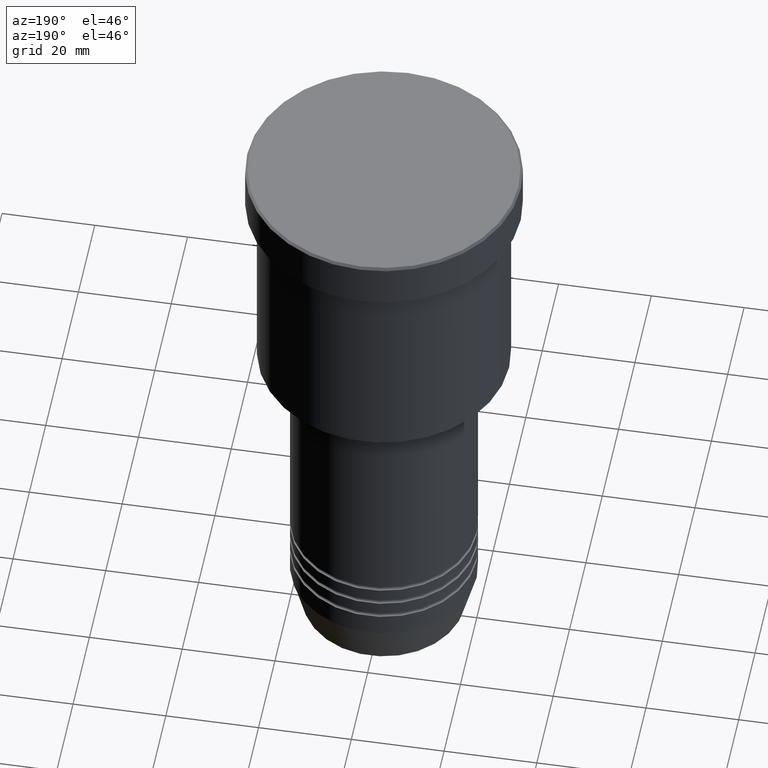
[diagram: clean part render]
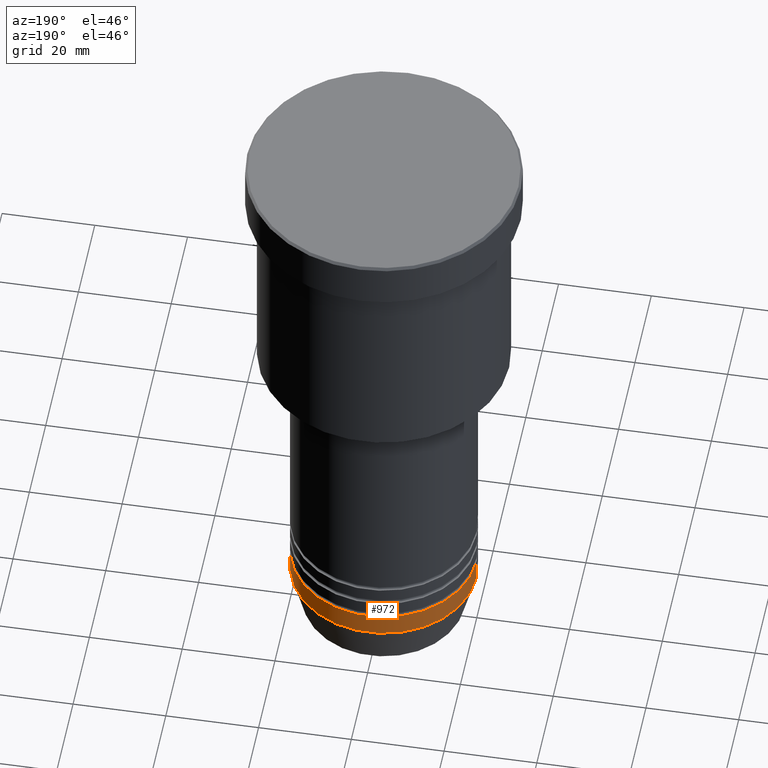
[diagram: same view with one face highlighted and labeled with its STEP entity id]
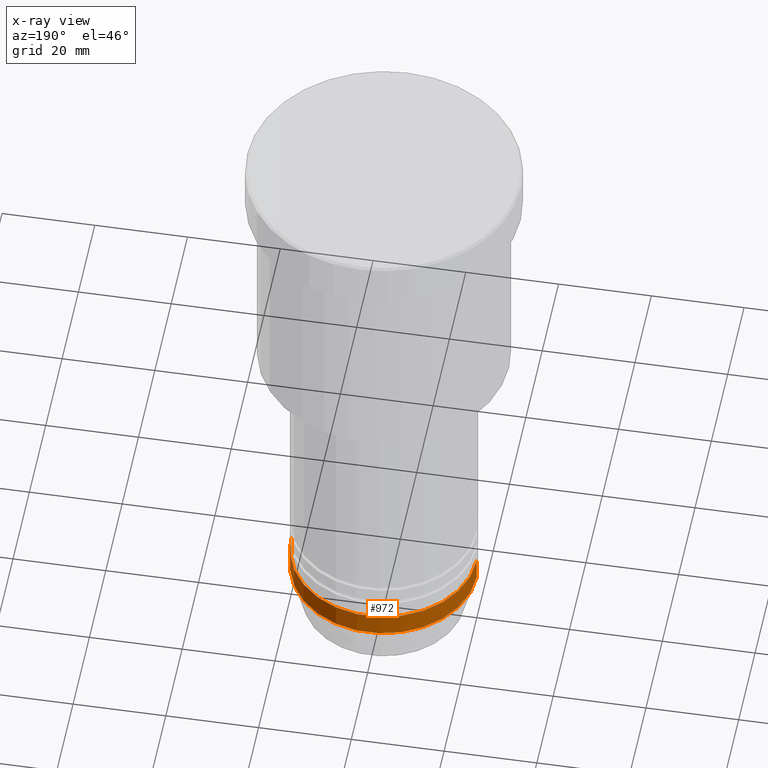
[diagram: x-ray of the same camera — body ghosted, the highlighted face saturated]
A machine part, auxiliary view. The second image highlights one B-rep face of the part: STEP entity #972.
The next image is the same camera in x-ray: the body ghosted, the highlighted face saturated — about 0% of this face is hidden behind the body in this view.
In plain terms, the highlighted cylindrical surface (partial cylindrical patch) has radius 20 mm, axis along (-0, -0, 1).
Its self-contained STEP definition (entity closure, byte-faithful):
#15 = AXIS2_PLACEMENT_3D ( 'NONE', #967, #53, #1114 ) ;
#43 = CARTESIAN_POINT ( 'NONE',  ( 0.000000000000000000, 0.000000000000000000, -121.0000000000000000 ) ) ;
#53 = DIRECTION ( 'NONE',  ( -0.000000000000000000, -0.000000000000000000, 1.000000000000000000 ) ) ;
#105 = FACE_OUTER_BOUND ( 'NONE', #272, .T. ) ;
#106 = CARTESIAN_POINT ( 'NONE',  ( 20.00000000000000000, 0.000000000000000000, 0.000000000000000000 ) ) ;
#107 = CARTESIAN_POINT ( 'NONE',  ( -20.00000000000000000, 2.449293598294706513E-15, 0.000000000000000000 ) ) ;
#109 = AXIS2_PLACEMENT_3D ( 'NONE', #1036, #222, #752 ) ;
#134 = EDGE_CURVE ( 'NONE', #671, #861, #301, .T. ) ;
#222 = DIRECTION ( 'NONE',  ( -0.000000000000000000, -0.000000000000000000, 1.000000000000000000 ) ) ;
#223 = DIRECTION ( 'NONE',  ( -0.000000000000000000, -0.000000000000000000, 1.000000000000000000 ) ) ;
#245 = DIRECTION ( 'NONE',  ( 1.000000000000000000, 0.000000000000000000, 0.000000000000000000 ) ) ;
#272 = EDGE_LOOP ( 'NONE', ( #324, #1020, #1058, #1115 ) ) ;
#289 = EDGE_CURVE ( 'NONE', #671, #757, #661, .T. ) ;
#301 = LINE ( 'NONE', #106, #926 ) ;
#314 = CYLINDRICAL_SURFACE ( 'NONE', #109, 20.00000000000000000 ) ;
#321 = VERTEX_POINT ( 'NONE', #1175 ) ;
#324 = ORIENTED_EDGE ( 'NONE', *, *, #289, .T. ) ;
#465 = EDGE_CURVE ( 'NONE', #757, #321, #819, .T. ) ;
#470 = CARTESIAN_POINT ( 'NONE',  ( 20.00000000000000000, 0.000000000000000000, -121.0000000000000000 ) ) ;
#531 = CARTESIAN_POINT ( 'NONE',  ( -20.00000000000000000, 2.449293598294706513E-15, -121.0000000000000000 ) ) ;
#661 = CIRCLE ( 'NONE', #709, 20.00000000000000000 ) ;
#667 = CARTESIAN_POINT ( 'NONE',  ( 20.00000000000000000, 0.000000000000000000, -115.9999999999999858 ) ) ;
#671 = VERTEX_POINT ( 'NONE', #470 ) ;
#709 = AXIS2_PLACEMENT_3D ( 'NONE', #43, #1051, #245 ) ;
#752 = DIRECTION ( 'NONE',  ( 1.000000000000000000, 0.000000000000000000, 0.000000000000000000 ) ) ;
#757 = VERTEX_POINT ( 'NONE', #531 ) ;
#819 = LINE ( 'NONE', #107, #1107 ) ;
#834 = EDGE_CURVE ( 'NONE', #861, #321, #864, .T. ) ;
#861 = VERTEX_POINT ( 'NONE', #667 ) ;
#864 = CIRCLE ( 'NONE', #15, 20.00000000000000000 ) ;
#926 = VECTOR ( 'NONE', #223, 1000.000000000000000 ) ;
#967 = CARTESIAN_POINT ( 'NONE',  ( 0.000000000000000000, 0.000000000000000000, -115.9999999999999858 ) ) ;
#972 = ADVANCED_FACE ( 'NONE', ( #105 ), #314, .T. ) ;
#1006 = DIRECTION ( 'NONE',  ( -0.000000000000000000, -0.000000000000000000, 1.000000000000000000 ) ) ;
#1020 = ORIENTED_EDGE ( 'NONE', *, *, #465, .T. ) ;
#1036 = CARTESIAN_POINT ( 'NONE',  ( 0.000000000000000000, 0.000000000000000000, 0.000000000000000000 ) ) ;
#1051 = DIRECTION ( 'NONE',  ( -0.000000000000000000, -0.000000000000000000, 1.000000000000000000 ) ) ;
#1058 = ORIENTED_EDGE ( 'NONE', *, *, #834, .F. ) ;
#1107 = VECTOR ( 'NONE', #1006, 1000.000000000000000 ) ;
#1114 = DIRECTION ( 'NONE',  ( 1.000000000000000000, 0.000000000000000000, 0.000000000000000000 ) ) ;
#1115 = ORIENTED_EDGE ( 'NONE', *, *, #134, .F. ) ;
#1175 = CARTESIAN_POINT ( 'NONE',  ( -20.00000000000000000, 2.449293598294706513E-15, -115.9999999999999858 ) ) ;